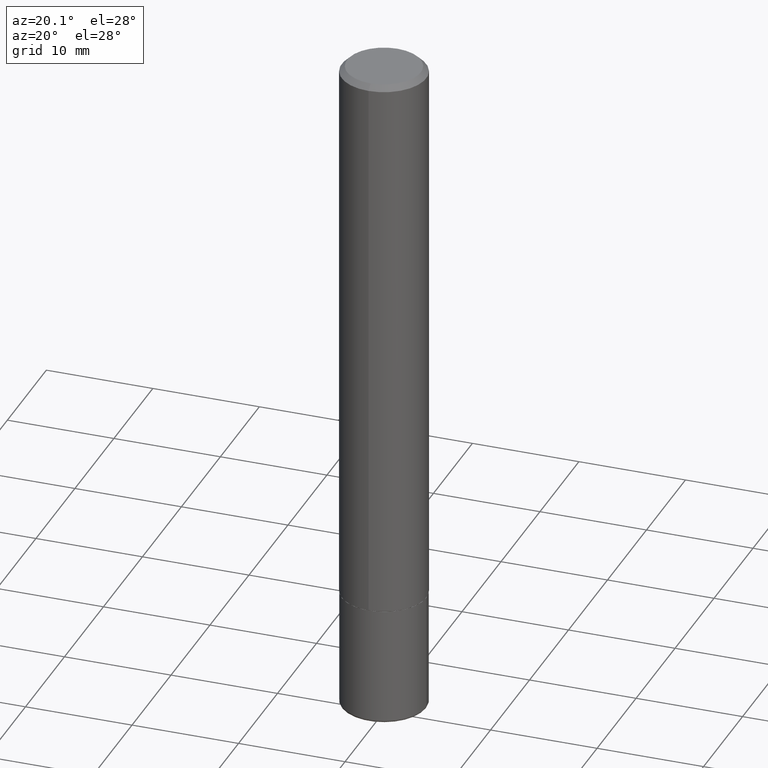
[diagram: clean part render]
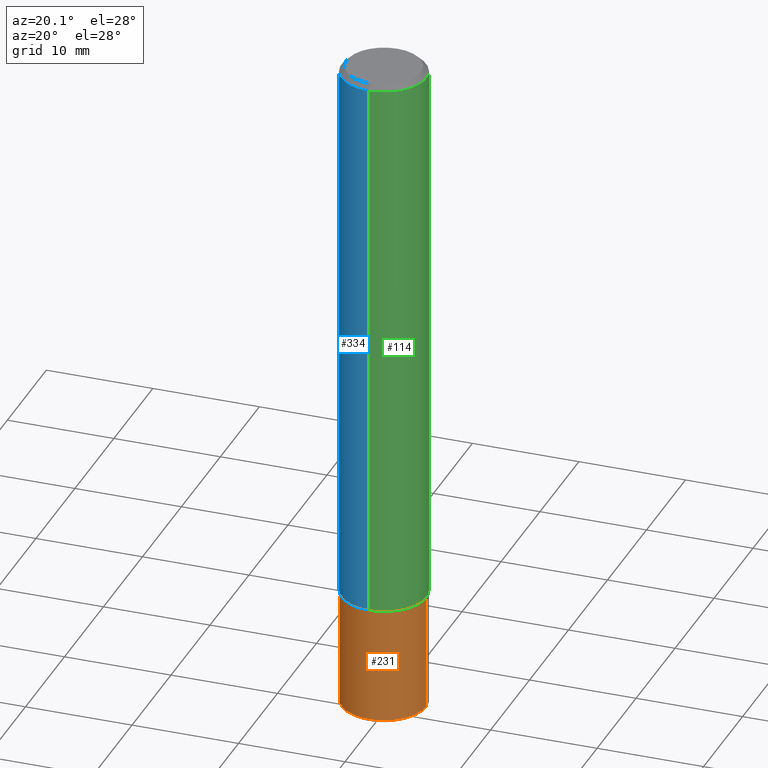
[diagram: same view with three faces highlighted in distinct colors, each labeled with its STEP entity id]
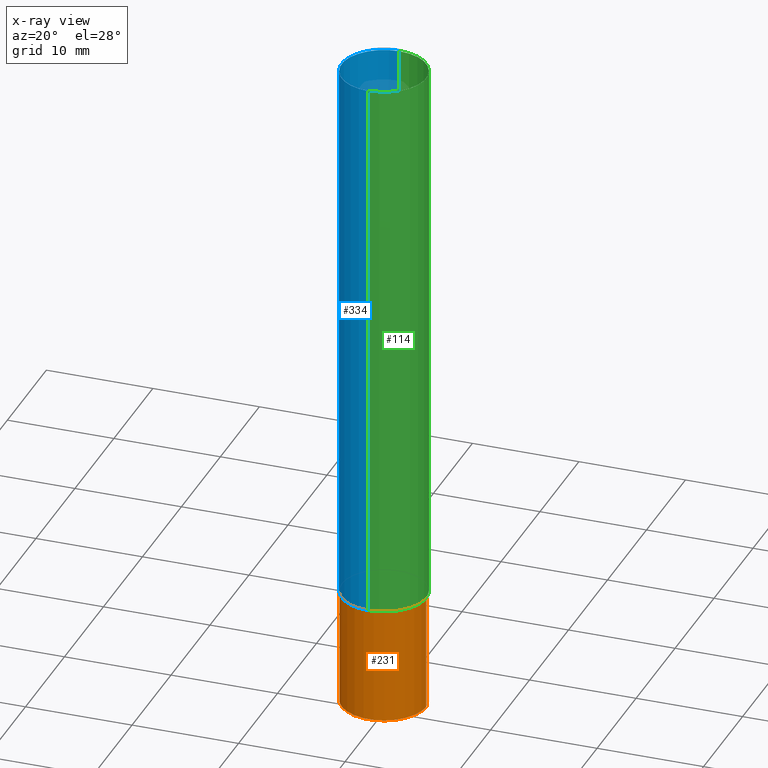
[diagram: x-ray of the same camera — body ghosted, the three highlighted faces saturated]
A machine part, auxiliary view with three faces highlighted in distinct colors.
The next image is the same camera in x-ray (body ghosted, the three faces saturated) — at least one of them is partly hidden behind the body in this view.
Their STEP definitions:

[orange] entity #231 — the highlighted cylindrical surface (partial cylindrical patch) has radius 3.9688 mm, axis along (-0, 0, 1).
#10 = VECTOR ( 'NONE', #58, 39.37007874015748143 ) ;
#29 = CARTESIAN_POINT ( 'NONE',  ( 0.1562500000000000000, -1.091087918388479174E-15, 7.619026212181150377E-30 ) ) ;
#38 = CARTESIAN_POINT ( 'NONE',  ( 0.000000000000000000, 0.000000000000000000, 0.000000000000000000 ) ) ;
#39 = DIRECTION ( 'NONE',  ( 1.000000000000000000, -6.982962677686269077E-15, 0.000000000000000000 ) ) ;
#43 = CARTESIAN_POINT ( 'NONE',  ( -0.1562499999999999167, -7.583565509094276753E-15, -2.489999999999999769 ) ) ;
#47 = VERTEX_POINT ( 'NONE', #43 ) ;
#52 = VERTEX_POINT ( 'NONE', #392 ) ;
#58 = DIRECTION ( 'NONE',  ( -2.445468806185136877E-29, 3.491481338843145188E-15, 1.000000000000000000 ) ) ;
#61 = EDGE_CURVE ( 'NONE', #47, #246, #376, .T. ) ;
#62 = CARTESIAN_POINT ( 'NONE',  ( 0.1562499999999999167, -9.784876452107911678E-15, -2.489999999999999769 ) ) ;
#64 = CARTESIAN_POINT ( 'NONE',  ( -0.1562500000000000000, -6.837261372916553606E-15, -2.062500000000000000 ) ) ;
#65 = CYLINDRICAL_SURFACE ( 'NONE', #189, 0.1562500000000000000 ) ;
#79 = AXIS2_PLACEMENT_3D ( 'NONE', #416, #266, #129 ) ;
#87 = DIRECTION ( 'NONE',  ( -2.445468806185136877E-29, 3.491481338843145188E-15, 1.000000000000000000 ) ) ;
#94 = LINE ( 'NONE', #411, #10 ) ;
#107 = EDGE_CURVE ( 'NONE', #246, #52, #122, .T. ) ;
#122 = LINE ( 'NONE', #29, #178 ) ;
#129 = DIRECTION ( 'NONE',  ( 1.000000000000000000, -6.982962677686269077E-15, 0.000000000000000000 ) ) ;
#150 = ORIENTED_EDGE ( 'NONE', *, *, #382, .F. ) ;
#155 = CIRCLE ( 'NONE', #79, 0.1562500000000000000 ) ;
#167 = EDGE_LOOP ( 'NONE', ( #404, #211, #259, #150 ) ) ;
#178 = VECTOR ( 'NONE', #87, 39.37007874015748143 ) ;
#189 = AXIS2_PLACEMENT_3D ( 'NONE', #38, #418, #388 ) ;
#195 = AXIS2_PLACEMENT_3D ( 'NONE', #358, #201, #39 ) ;
#201 = DIRECTION ( 'NONE',  ( -2.445468806185136597E-29, 3.491481338843145583E-15, 1.000000000000000000 ) ) ;
#211 = ORIENTED_EDGE ( 'NONE', *, *, #61, .T. ) ;
#231 = ADVANCED_FACE ( 'NONE', ( #290 ), #65, .T. ) ;
#246 = VERTEX_POINT ( 'NONE', #62 ) ;
#259 = ORIENTED_EDGE ( 'NONE', *, *, #107, .T. ) ;
#266 = DIRECTION ( 'NONE',  ( -2.445468806185136597E-29, 3.491481338843145583E-15, 1.000000000000000000 ) ) ;
#290 = FACE_OUTER_BOUND ( 'NONE', #167, .T. ) ;
#319 = EDGE_CURVE ( 'NONE', #47, #395, #94, .T. ) ;
#358 = CARTESIAN_POINT ( 'NONE',  ( 6.089217327400989947E-29, -8.693788533719431716E-15, -2.489999999999999769 ) ) ;
#376 = CIRCLE ( 'NONE', #195, 0.1562500000000000000 ) ;
#382 = EDGE_CURVE ( 'NONE', #395, #52, #155, .T. ) ;
#388 = DIRECTION ( 'NONE',  ( 1.000000000000000000, -6.982962677686266711E-15, 4.876176775795936353E-29 ) ) ;
#392 = CARTESIAN_POINT ( 'NONE',  ( 0.1562500000000000000, -8.292268179752468540E-15, -2.062500000000000000 ) ) ;
#395 = VERTEX_POINT ( 'NONE', #64 ) ;
#404 = ORIENTED_EDGE ( 'NONE', *, *, #319, .F. ) ;
#411 = CARTESIAN_POINT ( 'NONE',  ( -0.1562500000000000000, 1.110223024625156540E-15, -7.685836078523291160E-30 ) ) ;
#416 = CARTESIAN_POINT ( 'NONE',  ( 5.043779412756844791E-29, -7.201180261363988578E-15, -2.062500000000000000 ) ) ;
#418 = DIRECTION ( 'NONE',  ( -2.445468806185136597E-29, 3.491481338843145583E-15, 1.000000000000000000 ) ) ;

[blue] entity #334 — the highlighted cylindrical surface (partial cylindrical patch) has radius 3.9688 mm, axis along (-0, 0, 1).
#2 = DIRECTION ( 'NONE',  ( -2.446018690506352654E-29, 3.490693873197692271E-15, 1.000000000000000000 ) ) ;
#8 = DIRECTION ( 'NONE',  ( -6.982962677686265922E-15, -1.000000000000000000, 3.496765431890251398E-15 ) ) ;
#16 = CIRCLE ( 'NONE', #49, 0.1562500000000000278 ) ;
#19 = EDGE_LOOP ( 'NONE', ( #276, #145, #20, #375 ) ) ;
#20 = ORIENTED_EDGE ( 'NONE', *, *, #91, .T. ) ;
#21 = EDGE_CURVE ( 'NONE', #403, #340, #16, .T. ) ;
#22 = VERTEX_POINT ( 'NONE', #206 ) ;
#35 = DIRECTION ( 'NONE',  ( -2.446018690506352654E-29, 3.490693873197692271E-15, 1.000000000000000000 ) ) ;
#49 = AXIS2_PLACEMENT_3D ( 'NONE', #293, #35, #268 ) ;
#91 = EDGE_CURVE ( 'NONE', #22, #340, #383, .T. ) ;
#99 = VECTOR ( 'NONE', #412, 39.37007874015748143 ) ;
#125 = FACE_OUTER_BOUND ( 'NONE', #19, .T. ) ;
#133 = CYLINDRICAL_SURFACE ( 'NONE', #336, 0.1562500000000001388 ) ;
#145 = ORIENTED_EDGE ( 'NONE', *, *, #146, .T. ) ;
#146 = EDGE_CURVE ( 'NONE', #366, #22, #341, .T. ) ;
#191 = DIRECTION ( 'NONE',  ( -2.446018690506352654E-29, 3.490693873197692271E-15, 1.000000000000000000 ) ) ;
#206 = CARTESIAN_POINT ( 'NONE',  ( -1.091087918388430264E-15, -0.1562500000000074385, -2.061499999999999666 ) ) ;
#258 = CARTESIAN_POINT ( 'NONE',  ( -1.071952812151801412E-15, -0.1562500000000001110, -0.01999999999999948694 ) ) ;
#268 = DIRECTION ( 'NONE',  ( -6.982962677686266711E-15, -1.000000000000000000, 3.496765431890256131E-15 ) ) ;
#276 = ORIENTED_EDGE ( 'NONE', *, *, #311, .F. ) ;
#282 = CARTESIAN_POINT ( 'NONE',  ( 5.042467530478845729E-29, -7.196065419597043772E-15, -2.061500000000000110 ) ) ;
#291 = CARTESIAN_POINT ( 'NONE',  ( 1.110223024625157329E-15, 0.1562500000000001388, -5.454209176871399228E-16 ) ) ;
#292 = DIRECTION ( 'NONE',  ( -2.446018690506352654E-29, 3.490693873197692271E-15, 1.000000000000000000 ) ) ;
#293 = CARTESIAN_POINT ( 'NONE',  ( 4.892037381012713785E-31, -6.981387746395396129E-17, -0.02000000000000003511 ) ) ;
#311 = EDGE_CURVE ( 'NONE', #366, #403, #409, .T. ) ;
#320 = DIRECTION ( 'NONE',  ( -6.982962677686265922E-15, -1.000000000000000000, 3.490693873197692271E-15 ) ) ;
#325 = AXIS2_PLACEMENT_3D ( 'NONE', #282, #292, #8 ) ;
#328 = CARTESIAN_POINT ( 'NONE',  ( 0.000000000000000000, 0.000000000000000000, 0.000000000000000000 ) ) ;
#334 = ADVANCED_FACE ( 'NONE', ( #125 ), #133, .T. ) ;
#336 = AXIS2_PLACEMENT_3D ( 'NONE', #328, #2, #320 ) ;
#340 = VERTEX_POINT ( 'NONE', #258 ) ;
#341 = CIRCLE ( 'NONE', #325, 0.1562500000000002498 ) ;
#351 = CARTESIAN_POINT ( 'NONE',  ( 1.110223024625183362E-15, 0.1562499999999930334, -2.061500000000000554 ) ) ;
#353 = CARTESIAN_POINT ( 'NONE',  ( 1.091087918388479765E-15, 0.1562499999999999722, -0.02000000000000057981 ) ) ;
#362 = VECTOR ( 'NONE', #191, 39.37007874015748143 ) ;
#366 = VERTEX_POINT ( 'NONE', #351 ) ;
#375 = ORIENTED_EDGE ( 'NONE', *, *, #21, .F. ) ;
#383 = LINE ( 'NONE', #417, #99 ) ;
#403 = VERTEX_POINT ( 'NONE', #353 ) ;
#409 = LINE ( 'NONE', #291, #362 ) ;
#412 = DIRECTION ( 'NONE',  ( -2.446018690506352654E-29, 3.490693873197692271E-15, 1.000000000000000000 ) ) ;
#417 = CARTESIAN_POINT ( 'NONE',  ( -1.091087918388479962E-15, -0.1562500000000001388, 5.454209176871399228E-16 ) ) ;

[green] entity #114 — the highlighted cylindrical surface (partial cylindrical patch) has radius 3.9688 mm, axis along (-0, 0, 1).
#3 = CARTESIAN_POINT ( 'NONE',  ( 4.892037381012713785E-31, -6.981387746395396129E-17, -0.02000000000000003511 ) ) ;
#5 = DIRECTION ( 'NONE',  ( -6.982962677686266711E-15, -1.000000000000000000, 3.496765431890256131E-15 ) ) ;
#9 = CIRCLE ( 'NONE', #117, 0.1562500000000002498 ) ;
#22 = VERTEX_POINT ( 'NONE', #206 ) ;
#50 = ORIENTED_EDGE ( 'NONE', *, *, #311, .T. ) ;
#53 = DIRECTION ( 'NONE',  ( -6.982962677686265922E-15, -1.000000000000000000, 3.490693873197692271E-15 ) ) ;
#63 = EDGE_CURVE ( 'NONE', #22, #366, #9, .T. ) ;
#75 = ORIENTED_EDGE ( 'NONE', *, *, #91, .F. ) ;
#78 = ORIENTED_EDGE ( 'NONE', *, *, #63, .T. ) ;
#91 = EDGE_CURVE ( 'NONE', #22, #340, #383, .T. ) ;
#93 = ORIENTED_EDGE ( 'NONE', *, *, #159, .F. ) ;
#99 = VECTOR ( 'NONE', #412, 39.37007874015748143 ) ;
#114 = ADVANCED_FACE ( 'NONE', ( #224 ), #161, .T. ) ;
#117 = AXIS2_PLACEMENT_3D ( 'NONE', #271, #300, #238 ) ;
#126 = CARTESIAN_POINT ( 'NONE',  ( 0.000000000000000000, 0.000000000000000000, 0.000000000000000000 ) ) ;
#142 = AXIS2_PLACEMENT_3D ( 'NONE', #126, #194, #53 ) ;
#159 = EDGE_CURVE ( 'NONE', #340, #403, #257, .T. ) ;
#161 = CYLINDRICAL_SURFACE ( 'NONE', #142, 0.1562500000000001388 ) ;
#191 = DIRECTION ( 'NONE',  ( -2.446018690506352654E-29, 3.490693873197692271E-15, 1.000000000000000000 ) ) ;
#194 = DIRECTION ( 'NONE',  ( -2.446018690506352654E-29, 3.490693873197692271E-15, 1.000000000000000000 ) ) ;
#206 = CARTESIAN_POINT ( 'NONE',  ( -1.091087918388430264E-15, -0.1562500000000074385, -2.061499999999999666 ) ) ;
#224 = FACE_OUTER_BOUND ( 'NONE', #278, .T. ) ;
#238 = DIRECTION ( 'NONE',  ( -6.982962677686265922E-15, -1.000000000000000000, 3.496765431890251398E-15 ) ) ;
#257 = CIRCLE ( 'NONE', #385, 0.1562500000000000278 ) ;
#258 = CARTESIAN_POINT ( 'NONE',  ( -1.071952812151801412E-15, -0.1562500000000001110, -0.01999999999999948694 ) ) ;
#271 = CARTESIAN_POINT ( 'NONE',  ( 5.042467530478845729E-29, -7.196065419597043772E-15, -2.061500000000000110 ) ) ;
#278 = EDGE_LOOP ( 'NONE', ( #78, #50, #93, #75 ) ) ;
#291 = CARTESIAN_POINT ( 'NONE',  ( 1.110223024625157329E-15, 0.1562500000000001388, -5.454209176871399228E-16 ) ) ;
#300 = DIRECTION ( 'NONE',  ( -2.446018690506352654E-29, 3.490693873197692271E-15, 1.000000000000000000 ) ) ;
#311 = EDGE_CURVE ( 'NONE', #366, #403, #409, .T. ) ;
#340 = VERTEX_POINT ( 'NONE', #258 ) ;
#351 = CARTESIAN_POINT ( 'NONE',  ( 1.110223024625183362E-15, 0.1562499999999930334, -2.061500000000000554 ) ) ;
#353 = CARTESIAN_POINT ( 'NONE',  ( 1.091087918388479765E-15, 0.1562499999999999722, -0.02000000000000057981 ) ) ;
#354 = DIRECTION ( 'NONE',  ( -2.446018690506352654E-29, 3.490693873197692271E-15, 1.000000000000000000 ) ) ;
#362 = VECTOR ( 'NONE', #191, 39.37007874015748143 ) ;
#366 = VERTEX_POINT ( 'NONE', #351 ) ;
#383 = LINE ( 'NONE', #417, #99 ) ;
#385 = AXIS2_PLACEMENT_3D ( 'NONE', #3, #354, #5 ) ;
#403 = VERTEX_POINT ( 'NONE', #353 ) ;
#409 = LINE ( 'NONE', #291, #362 ) ;
#412 = DIRECTION ( 'NONE',  ( -2.446018690506352654E-29, 3.490693873197692271E-15, 1.000000000000000000 ) ) ;
#417 = CARTESIAN_POINT ( 'NONE',  ( -1.091087918388479962E-15, -0.1562500000000001388, 5.454209176871399228E-16 ) ) ;